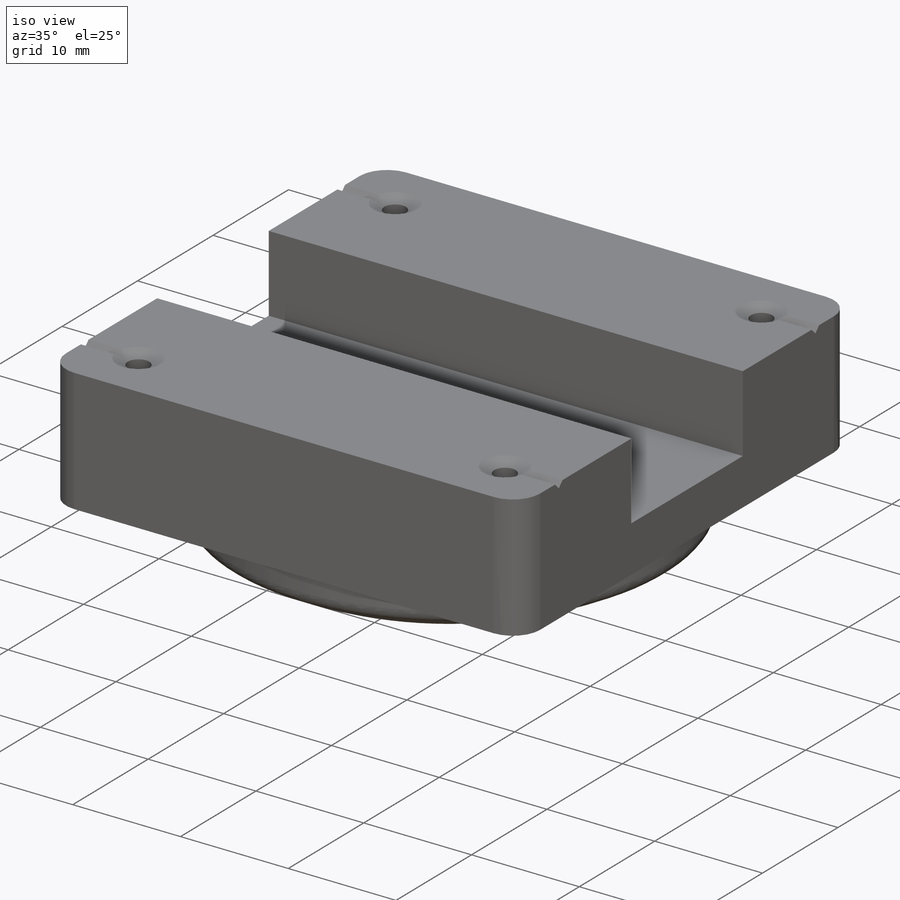
[diagram: iso view]
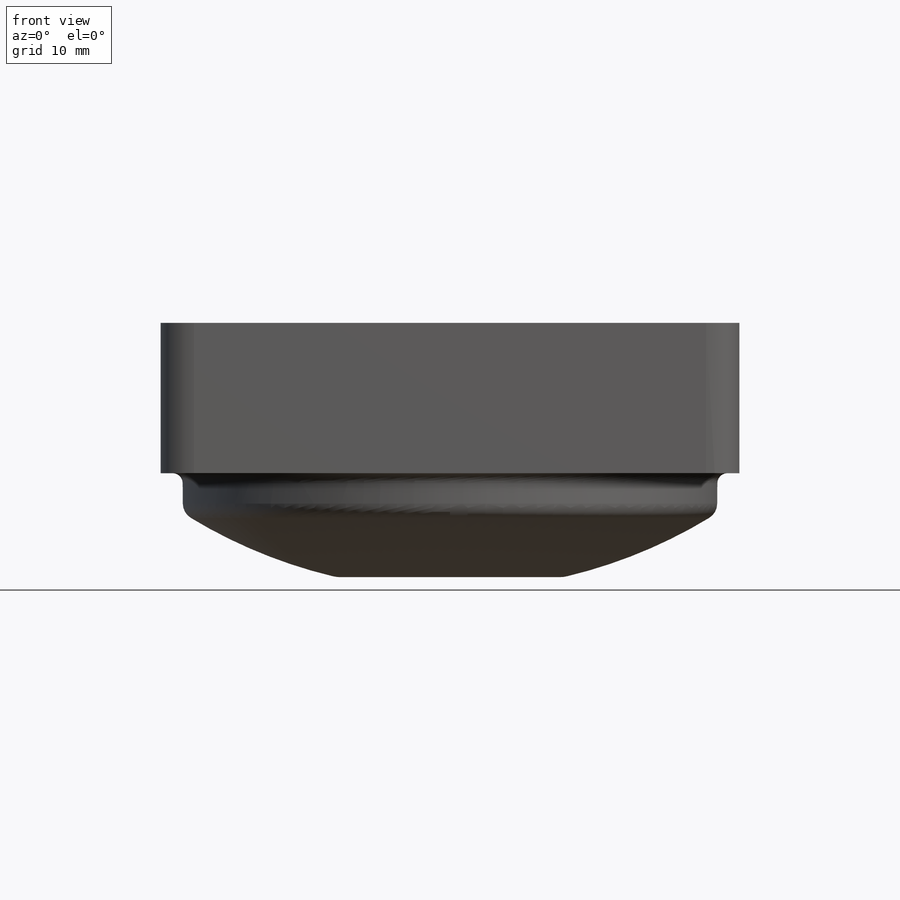
[diagram: front view]
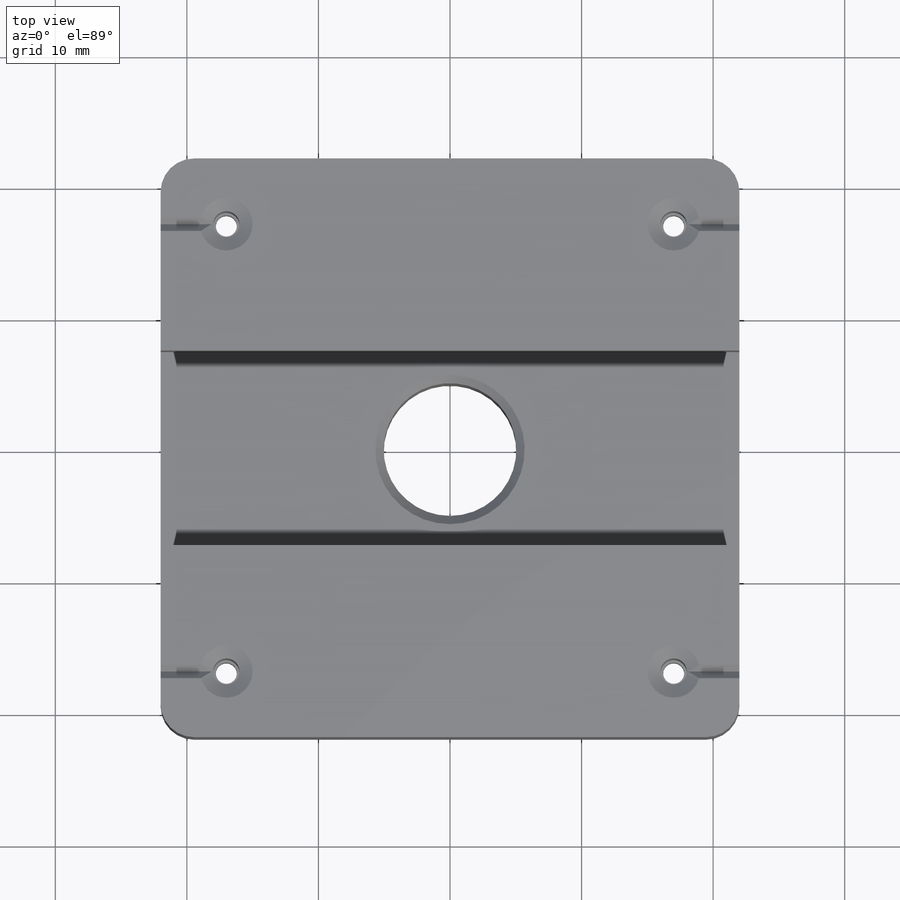
[diagram: top view]
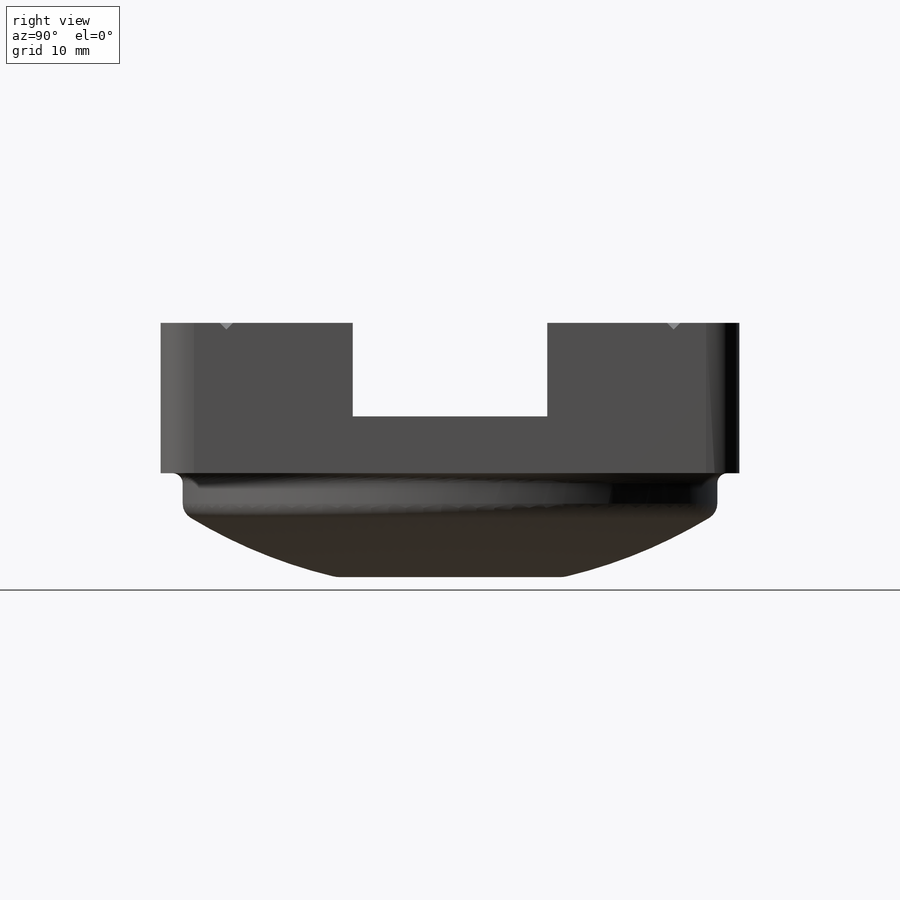
[diagram: right view]
SOLIDWORKS PART (.sldprt)
format: sldprt  version: not decoded by parser v0  size: 397,312 bytes
history: native  units: mm
features: sketch x8, fillet x4, hole x2, cut_extrude x2, material x1, extrude x1, revolve x1, mirror x1 (+14 scaffold rows collapsed)
feature tree (34):
  scaffold x14  (default folders/planes/origin — collapsed)
  material  "6061-T6 Al"
  sketch  "Sketch1"  dims[D1=43.9928mm]
  extrude  "Extrude1"  Depth=11.43mm
  hole  "M2x0.4 Tapped Hole1"  Diameter=1.6mm Depth=11.43mm
  sketch  "Sketch3"  dims[D1=34.0mm]
  sketch  "Sketch2"  dims[hole-wizard template sketch: 41 standard entries collapsed; hole parameters kept: c12.Thru Tap Drill Dia.=1.6mm c12.Thru Tap Drill Depth=11.43mm c12.Thread Major Dia.=2.0mm c12.Thread Depth=8.001mm c12.Near C'Sink Dia.=4.0mm c12.D6=~4.399409mm c12.Near C'Sink Angle=120.0deg]
  fillet  "Fillet1"  Radius=2.54mm
  sketch  "Sketch5"  dims[c1.D3=38.1mm c1.D6=76.2mm c1.D1=17.78mm c1.D2=~17.267389mm c2.D3=~17.267389mm c2.D2=40.64mm c2.D4=1.6764mm c2.D5=12.7mm]
  revolve  "Revolve2"  Angle=360deg
  fillet  "Fillet2"  Radius=0.762mm
  fillet  "Fillet3"  Radius=1.27mm
  sketch  "Sketch8"  dims[D1=14.7828mm]
  cut_extrude  "Cut-Extrude1"  Depth=7.112mm
  hole  "3/8 Clearance Hole1"  Diameter=10.0838mm Depth=12.221112mm
  sketch  "Sketch7"
  sketch  "Sketch6"  dims[hole-wizard template sketch: 54 standard entries collapsed; hole parameters kept: c17.Thru Hole Dia.=10.0838mm c17.Thru Hole Depth=~12.221112mm c17.Near C'Sink Dia.=11.3538mm c17.D4=~3.666174mm c17.Near C'Sink Angle=90.0deg]
  sketch  "Sketch9"  dims[D1=0.508mm]
  cut_extrude  "Cut-Extrude2"  [1 undecoded]
  mirror  "Mirror1"
  fillet  "Fillet4"  Radius=2.54mm
decode coverage: 16 of 19 modeling features carry decoded parameters
note: ~ marks probable driven/reference dimensions
note: 1 parameter value undecoded
note: suppression state not decoded; provenance and decode notes live in map.json
